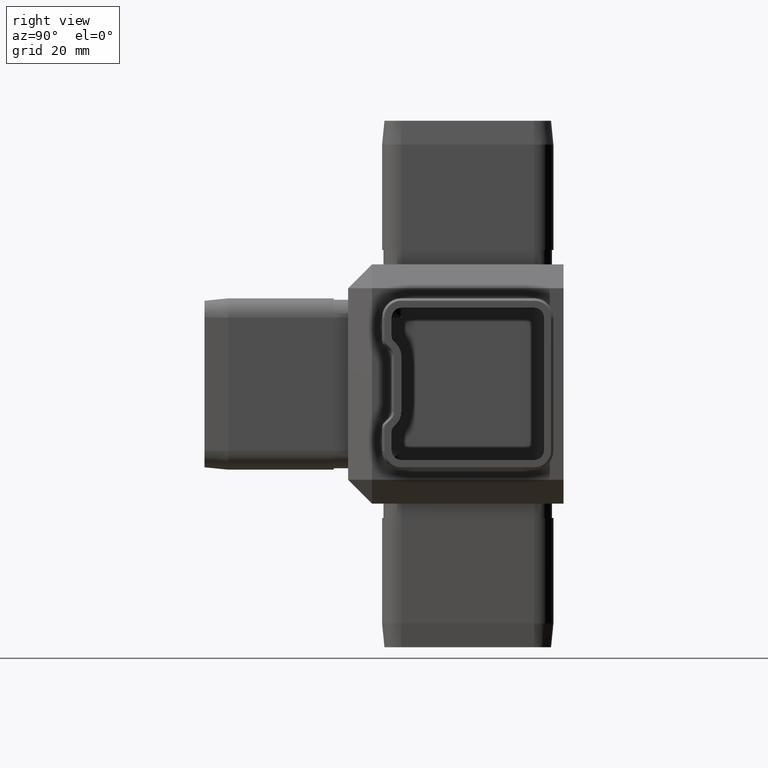
[diagram: clean part render]
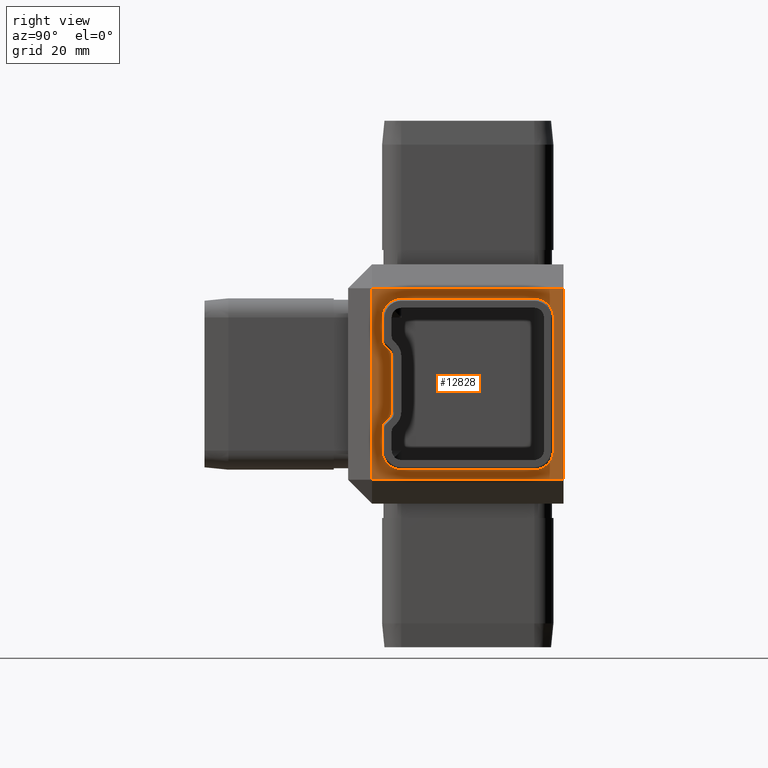
[diagram: same view with one face highlighted and labeled with its STEP entity id]
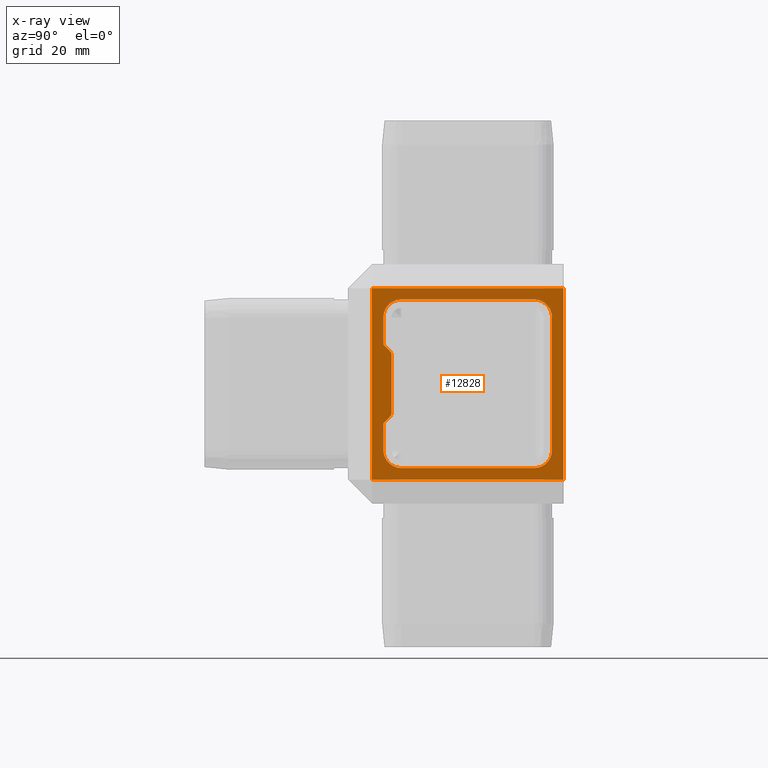
[diagram: x-ray of the same camera — body ghosted, the highlighted face saturated]
A machine part, right view. The second image highlights one B-rep face of the part: STEP entity #12828.
The next image is the same camera in x-ray: the body ghosted, the highlighted face saturated — about 9% of this face is hidden behind the body in this view.
In plain terms, the highlighted planar face has unit normal (-1, -0, 0).
Its self-contained STEP definition (entity closure, byte-faithful):
#55 = LINE ( 'NONE', #1843, #10169 ) ;
#247 = DIRECTION ( 'NONE',  ( 1.248002500702740300E-016, -1.000000000000000000, -2.496005001405480600E-016 ) ) ;
#285 = DIRECTION ( 'NONE',  ( 0.0000000000000000000, 0.0000000000000000000, -1.000000000000000000 ) ) ;
#299 = ORIENTED_EDGE ( 'NONE', *, *, #2519, .T. ) ;
#334 = LINE ( 'NONE', #20297, #15006 ) ;
#445 = ORIENTED_EDGE ( 'NONE', *, *, #8987, .F. ) ;
#705 = ORIENTED_EDGE ( 'NONE', *, *, #2778, .T. ) ;
#919 = VERTEX_POINT ( 'NONE', #17097 ) ;
#1181 = CARTESIAN_POINT ( 'NONE',  ( 22.49999999999998900, -11.39999999999997900, -17.60000000000001200 ) ) ;
#1223 = DIRECTION ( 'NONE',  ( 0.0000000000000000000, 0.0000000000000000000, -1.000000000000000000 ) ) ;
#1244 = ORIENTED_EDGE ( 'NONE', *, *, #11068, .T. ) ;
#1276 = VECTOR ( 'NONE', #20662, 1000.000000000000000 ) ;
#1294 = DIRECTION ( 'NONE',  ( 0.0000000000000000000, 0.0000000000000000000, -1.000000000000000000 ) ) ;
#1451 = AXIS2_PLACEMENT_3D ( 'NONE', #20709, #12535, #1294 ) ;
#1593 = DIRECTION ( 'NONE',  ( -2.312964634635743000E-016, 1.000000000000000000, -0.0000000000000000000 ) ) ;
#1667 = CARTESIAN_POINT ( 'NONE',  ( 22.49999999999999600, 22.49999999999999300, -19.99999999999999600 ) ) ;
#1766 = CARTESIAN_POINT ( 'NONE',  ( 22.50000000000000700, -17.49999999999999600, -19.99999999999999600 ) ) ;
#1843 = CARTESIAN_POINT ( 'NONE',  ( 22.50000000000000000, -15.09999999999997500, 13.89999999999999100 ) ) ;
#1946 = PLANE ( 'NONE',  #9071 ) ;
#2106 = VERTEX_POINT ( 'NONE', #10842 ) ;
#2280 = ORIENTED_EDGE ( 'NONE', *, *, #6667, .F. ) ;
#2519 = EDGE_CURVE ( 'NONE', #10932, #20768, #4063, .T. ) ;
#2708 = AXIS2_PLACEMENT_3D ( 'NONE', #10693, #13974, #18725 ) ;
#2778 = EDGE_CURVE ( 'NONE', #10055, #9583, #4591, .T. ) ;
#3080 = CARTESIAN_POINT ( 'NONE',  ( 22.49999999999998600, 16.39999999999999900, -17.60000000000000500 ) ) ;
#3283 = DIRECTION ( 'NONE',  ( 0.0000000000000000000, 0.0000000000000000000, 1.000000000000000000 ) ) ;
#3412 = VERTEX_POINT ( 'NONE', #11259 ) ;
#3447 = AXIS2_PLACEMENT_3D ( 'NONE', #14992, #10043, #285 ) ;
#3459 = VERTEX_POINT ( 'NONE', #1766 ) ;
#3495 = CARTESIAN_POINT ( 'NONE',  ( 22.49999999999999600, 22.49999999999999300, 25.00000000000000000 ) ) ;
#3510 = ORIENTED_EDGE ( 'NONE', *, *, #15947, .T. ) ;
#3551 = CIRCLE ( 'NONE', #1451, 3.699999999999998400 ) ;
#3601 = CIRCLE ( 'NONE', #5618, 1.499999999999998700 ) ;
#3618 = DIRECTION ( 'NONE',  ( 2.416047447198739200E-016, -0.7071067811865487900, 0.7071067811865463500 ) ) ;
#3816 = CARTESIAN_POINT ( 'NONE',  ( 22.49999999999999600, 22.49999999999999300, 25.00000000000000000 ) ) ;
#3987 = CARTESIAN_POINT ( 'NONE',  ( 22.49999999999999300, -15.09999999999997700, -8.221320343559650500 ) ) ;
#4047 = CIRCLE ( 'NONE', #2708, 1.500000000000001300 ) ;
#4063 = LINE ( 'NONE', #7499, #14456 ) ;
#4245 = VECTOR ( 'NONE', #17714, 1000.000000000000000 ) ;
#4330 = LINE ( 'NONE', #17589, #14234 ) ;
#4591 = LINE ( 'NONE', #13324, #19316 ) ;
#4630 = CARTESIAN_POINT ( 'NONE',  ( 22.50000000000000000, -13.89999999999998100, -9.121320343559647300 ) ) ;
#4847 = DIRECTION ( 'NONE',  ( 0.0000000000000000000, 0.0000000000000000000, -1.000000000000000000 ) ) ;
#5017 = LINE ( 'NONE', #1181, #15905 ) ;
#5366 = EDGE_CURVE ( 'NONE', #9796, #8254, #5017, .T. ) ;
#5481 = VERTEX_POINT ( 'NONE', #18170 ) ;
#5618 = AXIS2_PLACEMENT_3D ( 'NONE', #7792, #19143, #19288 ) ;
#5680 = AXIS2_PLACEMENT_3D ( 'NONE', #19497, #11410, #3283 ) ;
#5755 = ORIENTED_EDGE ( 'NONE', *, *, #18406, .T. ) ;
#6105 = CARTESIAN_POINT ( 'NONE',  ( 22.50000000000000700, -17.49999999999999600, 25.00000000000000000 ) ) ;
#6168 = EDGE_CURVE ( 'NONE', #20180, #3412, #9833, .T. ) ;
#6210 = DIRECTION ( 'NONE',  ( -1.000000000000000000, -1.196361017915039700E-016, 4.440892098500625200E-016 ) ) ;
#6400 = ORIENTED_EDGE ( 'NONE', *, *, #6951, .F. ) ;
#6667 = EDGE_CURVE ( 'NONE', #20180, #7278, #7303, .T. ) ;
#6674 = CIRCLE ( 'NONE', #3447, 3.699999999999994800 ) ;
#6854 = CARTESIAN_POINT ( 'NONE',  ( 22.49999999999999600, 22.49999999999999300, 19.99999999999997500 ) ) ;
#6951 = EDGE_CURVE ( 'NONE', #2106, #14823, #6674, .T. ) ;
#7216 = CARTESIAN_POINT ( 'NONE',  ( 22.50000000000000000, -15.09999999999997500, 8.221320343559614900 ) ) ;
#7272 = CIRCLE ( 'NONE', #11528, 3.699999999999991300 ) ;
#7278 = VERTEX_POINT ( 'NONE', #15853 ) ;
#7303 = LINE ( 'NONE', #3816, #11480 ) ;
#7396 = DIRECTION ( 'NONE',  ( 2.220446049250312600E-016, -1.196361017915039500E-016, 1.000000000000000000 ) ) ;
#7499 = CARTESIAN_POINT ( 'NONE',  ( 22.50000000000000000, -13.83933982822016300, -6.939339828220191500 ) ) ;
#7592 = VECTOR ( 'NONE', #18579, 1000.000000000000000 ) ;
#7741 = DIRECTION ( 'NONE',  ( -3.043374519257555500E-016, -0.0000000000000000000, -1.000000000000000000 ) ) ;
#7792 = CARTESIAN_POINT ( 'NONE',  ( 22.50000000000000400, -14.89999999999998400, 5.878679656440351800 ) ) ;
#7887 = AXIS2_PLACEMENT_3D ( 'NONE', #8178, #8112, #4847 ) ;
#8098 = VECTOR ( 'NONE', #1593, 1000.000000000000000 ) ;
#8112 = DIRECTION ( 'NONE',  ( 1.000000000000000000, 1.196361017915039700E-016, -4.440892098500625200E-016 ) ) ;
#8178 = CARTESIAN_POINT ( 'NONE',  ( 22.50000000000000400, -11.39999999999997900, 13.89999999999999000 ) ) ;
#8254 = VERTEX_POINT ( 'NONE', #3080 ) ;
#8278 = CARTESIAN_POINT ( 'NONE',  ( 22.49999999999999600, 20.09999999999999100, 2.499999999999993300 ) ) ;
#8387 = DIRECTION ( 'NONE',  ( 2.312964634635743000E-016, -1.000000000000000000, 0.0000000000000000000 ) ) ;
#8392 = CARTESIAN_POINT ( 'NONE',  ( 22.50000000000000000, 16.39999999999999100, 17.59999999999999400 ) ) ;
#8554 = CARTESIAN_POINT ( 'NONE',  ( 22.50000000000000400, -14.96066017177980200, 8.060660171779796100 ) ) ;
#8633 = EDGE_CURVE ( 'NONE', #17324, #10932, #19793, .T. ) ;
#8653 = EDGE_CURVE ( 'NONE', #17324, #919, #15200, .T. ) ;
#8987 = EDGE_CURVE ( 'NONE', #19966, #9486, #19009, .T. ) ;
#9049 = DIRECTION ( 'NONE',  ( 7.241374701688096600E-017, 0.7071067811865474600, 0.7071067811865476800 ) ) ;
#9071 = AXIS2_PLACEMENT_3D ( 'NONE', #3495, #16576, #10253 ) ;
#9126 = ORIENTED_EDGE ( 'NONE', *, *, #11463, .T. ) ;
#9276 = EDGE_CURVE ( 'NONE', #3412, #3459, #20259, .T. ) ;
#9486 = VERTEX_POINT ( 'NONE', #8278 ) ;
#9583 = VERTEX_POINT ( 'NONE', #8554 ) ;
#9592 = DIRECTION ( 'NONE',  ( 1.000000000000000000, 1.196361017915039700E-016, -4.440892098500625200E-016 ) ) ;
#9796 = VERTEX_POINT ( 'NONE', #20319 ) ;
#9833 = LINE ( 'NONE', #19884, #19714 ) ;
#10043 = DIRECTION ( 'NONE',  ( 1.000000000000000000, 1.196361017915039700E-016, -4.440892098500625200E-016 ) ) ;
#10055 = VERTEX_POINT ( 'NONE', #11096 ) ;
#10169 = VECTOR ( 'NONE', #14838, 1000.000000000000000 ) ;
#10197 = ORIENTED_EDGE ( 'NONE', *, *, #15258, .F. ) ;
#10253 = DIRECTION ( 'NONE',  ( 2.312964634635743000E-016, -1.000000000000000000, 0.0000000000000000000 ) ) ;
#10693 = CARTESIAN_POINT ( 'NONE',  ( 22.50000000000000400, -13.89999999999998100, 9.121320343559620600 ) ) ;
#10842 = CARTESIAN_POINT ( 'NONE',  ( 22.50000000000000000, 20.09999999999999100, 13.89999999999999700 ) ) ;
#10880 = DIRECTION ( 'NONE',  ( -1.248002500702740000E-016, 1.000000000000000000, 2.496005001405480100E-016 ) ) ;
#10932 = VERTEX_POINT ( 'NONE', #20944 ) ;
#11068 = EDGE_CURVE ( 'NONE', #3459, #7278, #18757, .T. ) ;
#11089 = EDGE_LOOP ( 'NONE', ( #19920, #1244, #2280, #16205 ) ) ;
#11096 = CARTESIAN_POINT ( 'NONE',  ( 22.50000000000000400, -13.83933982822016900, 6.939339828220171000 ) ) ;
#11259 = CARTESIAN_POINT ( 'NONE',  ( 22.50000000000000700, -17.49999999999999600, 19.99999999999997500 ) ) ;
#11410 = DIRECTION ( 'NONE',  ( 1.000000000000000000, 1.196361017915039700E-016, -4.440892098500625200E-016 ) ) ;
#11463 = EDGE_CURVE ( 'NONE', #15025, #17915, #334, .T. ) ;
#11480 = VECTOR ( 'NONE', #11976, 1000.000000000000000 ) ;
#11528 = AXIS2_PLACEMENT_3D ( 'NONE', #19388, #9592, #1223 ) ;
#11571 = CARTESIAN_POINT ( 'NONE',  ( 22.50000000000000000, -15.09999999999997500, 13.89999999999999100 ) ) ;
#11609 = EDGE_LOOP ( 'NONE', ( #11884, #20566, #14848, #6400, #3510, #445, #10197, #17819, #15321, #12044, #18867, #299, #5755, #9126, #18454, #705, #19925 ) ) ;
#11700 = FACE_OUTER_BOUND ( 'NONE', #11089, .T. ) ;
#11884 = ORIENTED_EDGE ( 'NONE', *, *, #12314, .F. ) ;
#11976 = DIRECTION ( 'NONE',  ( -0.0000000000000000000, -0.0000000000000000000, -1.000000000000000000 ) ) ;
#12031 = EDGE_CURVE ( 'NONE', #17915, #10055, #3601, .T. ) ;
#12044 = ORIENTED_EDGE ( 'NONE', *, *, #8653, .F. ) ;
#12125 = CIRCLE ( 'NONE', #7887, 3.699999999999996600 ) ;
#12314 = EDGE_CURVE ( 'NONE', #13840, #13035, #55, .T. ) ;
#12535 = DIRECTION ( 'NONE',  ( 1.000000000000000000, 1.196361017915039700E-016, -4.440892098500625200E-016 ) ) ;
#12580 = EDGE_CURVE ( 'NONE', #9583, #13035, #4047, .T. ) ;
#12828 = ADVANCED_FACE ( 'NONE', ( #20298, #11700 ), #1946, .F. ) ;
#13035 = VERTEX_POINT ( 'NONE', #7216 ) ;
#13170 = CARTESIAN_POINT ( 'NONE',  ( 22.49999999999998600, 20.09999999999998700, -13.90000000000000900 ) ) ;
#13324 = CARTESIAN_POINT ( 'NONE',  ( 22.50000000000000400, -14.96066017177980000, 8.060660171779799700 ) ) ;
#13766 = CARTESIAN_POINT ( 'NONE',  ( 22.50000000000000000, -13.39999999999997900, -5.878679656440370500 ) ) ;
#13798 = EDGE_CURVE ( 'NONE', #5481, #13840, #12125, .T. ) ;
#13840 = VERTEX_POINT ( 'NONE', #11571 ) ;
#13974 = DIRECTION ( 'NONE',  ( -1.000000000000000000, -1.196361017915039700E-016, 4.440892098500625200E-016 ) ) ;
#14234 = VECTOR ( 'NONE', #7741, 1000.000000000000000 ) ;
#14456 = VECTOR ( 'NONE', #9049, 1000.000000000000000 ) ;
#14750 = LINE ( 'NONE', #18099, #16741 ) ;
#14823 = VERTEX_POINT ( 'NONE', #8392 ) ;
#14838 = DIRECTION ( 'NONE',  ( -2.496005001405477600E-016, -6.240012503513694000E-017, -1.000000000000000000 ) ) ;
#14848 = ORIENTED_EDGE ( 'NONE', *, *, #20432, .F. ) ;
#14939 = CIRCLE ( 'NONE', #5680, 1.499999999999999600 ) ;
#14992 = CARTESIAN_POINT ( 'NONE',  ( 22.50000000000000000, 16.39999999999999500, 13.89999999999999700 ) ) ;
#15006 = VECTOR ( 'NONE', #7396, 1000.000000000000000 ) ;
#15025 = VERTEX_POINT ( 'NONE', #13766 ) ;
#15200 = LINE ( 'NONE', #19097, #1276 ) ;
#15258 = EDGE_CURVE ( 'NONE', #8254, #19966, #7272, .T. ) ;
#15321 = ORIENTED_EDGE ( 'NONE', *, *, #20598, .F. ) ;
#15853 = CARTESIAN_POINT ( 'NONE',  ( 22.49999999999999600, 22.49999999999999300, -19.99999999999999600 ) ) ;
#15905 = VECTOR ( 'NONE', #10880, 1000.000000000000000 ) ;
#15947 = EDGE_CURVE ( 'NONE', #2106, #9486, #4330, .T. ) ;
#16205 = ORIENTED_EDGE ( 'NONE', *, *, #6168, .T. ) ;
#16576 = DIRECTION ( 'NONE',  ( -1.000000000000000000, -2.312964634635743000E-016, 0.0000000000000000000 ) ) ;
#16741 = VECTOR ( 'NONE', #247, 1000.000000000000000 ) ;
#17097 = CARTESIAN_POINT ( 'NONE',  ( 22.49999999999999300, -15.09999999999997700, -13.90000000000001300 ) ) ;
#17324 = VERTEX_POINT ( 'NONE', #3987 ) ;
#17589 = CARTESIAN_POINT ( 'NONE',  ( 22.50000000000000000, 20.09999999999999100, 13.89999999999999700 ) ) ;
#17714 = DIRECTION ( 'NONE',  ( 0.0000000000000000000, 0.0000000000000000000, -1.000000000000000000 ) ) ;
#17733 = CARTESIAN_POINT ( 'NONE',  ( 22.50000000000000400, -13.39999999999998400, 5.878679656440351800 ) ) ;
#17819 = ORIENTED_EDGE ( 'NONE', *, *, #5366, .F. ) ;
#17915 = VERTEX_POINT ( 'NONE', #17733 ) ;
#17987 = AXIS2_PLACEMENT_3D ( 'NONE', #4630, #6210, #18943 ) ;
#18099 = CARTESIAN_POINT ( 'NONE',  ( 22.50000000000000000, 16.39999999999999100, 17.59999999999999400 ) ) ;
#18170 = CARTESIAN_POINT ( 'NONE',  ( 22.50000000000000400, -11.39999999999997900, 17.59999999999998700 ) ) ;
#18406 = EDGE_CURVE ( 'NONE', #20768, #15025, #14939, .T. ) ;
#18433 = CARTESIAN_POINT ( 'NONE',  ( 22.49999999999998600, 20.09999999999998700, -13.90000000000000900 ) ) ;
#18454 = ORIENTED_EDGE ( 'NONE', *, *, #12031, .T. ) ;
#18579 = DIRECTION ( 'NONE',  ( 2.115516434118056700E-016, -2.115516434118056700E-016, 1.000000000000000000 ) ) ;
#18725 = DIRECTION ( 'NONE',  ( 0.0000000000000000000, 0.0000000000000000000, -1.000000000000000000 ) ) ;
#18757 = LINE ( 'NONE', #1667, #8098 ) ;
#18867 = ORIENTED_EDGE ( 'NONE', *, *, #8633, .T. ) ;
#18943 = DIRECTION ( 'NONE',  ( 0.0000000000000000000, 0.0000000000000000000, -1.000000000000000000 ) ) ;
#19009 = LINE ( 'NONE', #18433, #7592 ) ;
#19097 = CARTESIAN_POINT ( 'NONE',  ( 22.50000000000000000, -15.09999999999997500, 13.89999999999999100 ) ) ;
#19143 = DIRECTION ( 'NONE',  ( 1.000000000000000000, 1.196361017915039700E-016, -4.440892098500625200E-016 ) ) ;
#19288 = DIRECTION ( 'NONE',  ( 0.0000000000000000000, 0.0000000000000000000, -1.000000000000000000 ) ) ;
#19296 = CARTESIAN_POINT ( 'NONE',  ( 22.50000000000000000, -13.83933982822016200, -6.939339828220193200 ) ) ;
#19316 = VECTOR ( 'NONE', #3618, 1000.000000000000000 ) ;
#19388 = CARTESIAN_POINT ( 'NONE',  ( 22.49999999999998600, 16.39999999999999900, -13.90000000000001300 ) ) ;
#19497 = CARTESIAN_POINT ( 'NONE',  ( 22.50000000000000000, -14.89999999999998100, -5.878679656440370500 ) ) ;
#19714 = VECTOR ( 'NONE', #8387, 1000.000000000000000 ) ;
#19793 = CIRCLE ( 'NONE', #17987, 1.499999999999997800 ) ;
#19884 = CARTESIAN_POINT ( 'NONE',  ( 22.50000000000000700, -22.50000000000000400, 19.99999999999997500 ) ) ;
#19920 = ORIENTED_EDGE ( 'NONE', *, *, #9276, .T. ) ;
#19925 = ORIENTED_EDGE ( 'NONE', *, *, #12580, .T. ) ;
#19966 = VERTEX_POINT ( 'NONE', #13170 ) ;
#20180 = VERTEX_POINT ( 'NONE', #6854 ) ;
#20259 = LINE ( 'NONE', #6105, #4245 ) ;
#20297 = CARTESIAN_POINT ( 'NONE',  ( 22.50000000000000400, -13.39999999999998100, 5.878679656440351800 ) ) ;
#20298 = FACE_BOUND ( 'NONE', #11609, .T. ) ;
#20319 = CARTESIAN_POINT ( 'NONE',  ( 22.49999999999998900, -11.39999999999997900, -17.60000000000001200 ) ) ;
#20432 = EDGE_CURVE ( 'NONE', #14823, #5481, #14750, .T. ) ;
#20566 = ORIENTED_EDGE ( 'NONE', *, *, #13798, .F. ) ;
#20598 = EDGE_CURVE ( 'NONE', #919, #9796, #3551, .T. ) ;
#20662 = DIRECTION ( 'NONE',  ( -2.496005001405477600E-016, -6.240012503513694000E-017, -1.000000000000000000 ) ) ;
#20709 = CARTESIAN_POINT ( 'NONE',  ( 22.49999999999999300, -11.39999999999997700, -13.90000000000001300 ) ) ;
#20768 = VERTEX_POINT ( 'NONE', #19296 ) ;
#20944 = CARTESIAN_POINT ( 'NONE',  ( 22.50000000000000000, -14.96066017177979800, -8.060660171779826300 ) ) ;